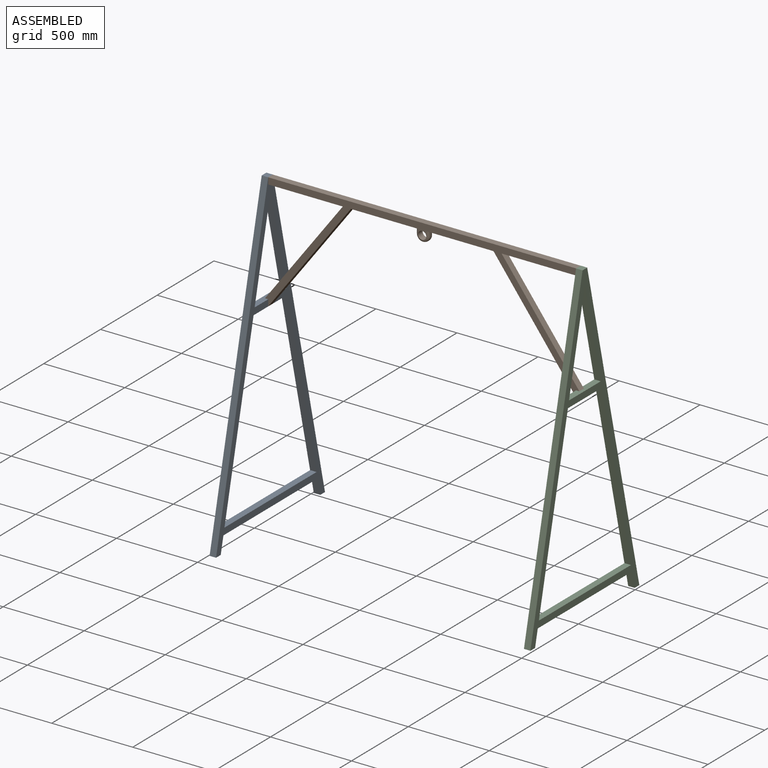
[diagram: assembled view]
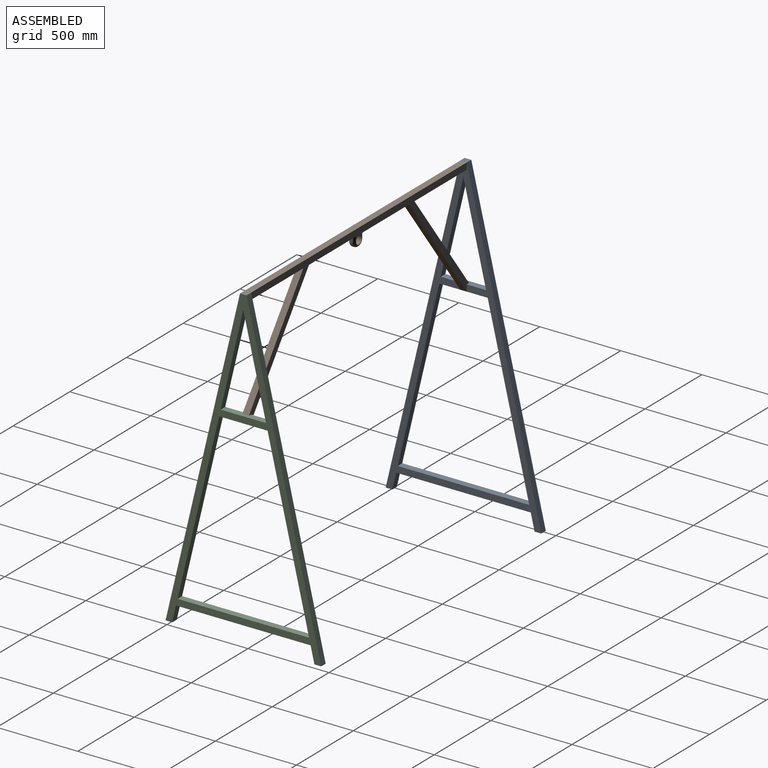
[diagram: assembled view, second angle]
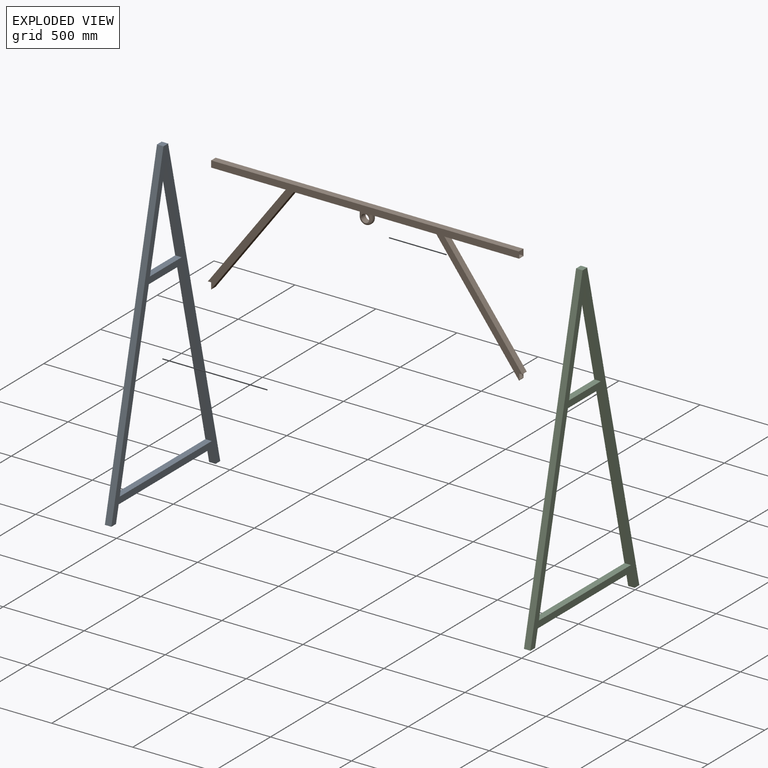
[diagram: exploded view]
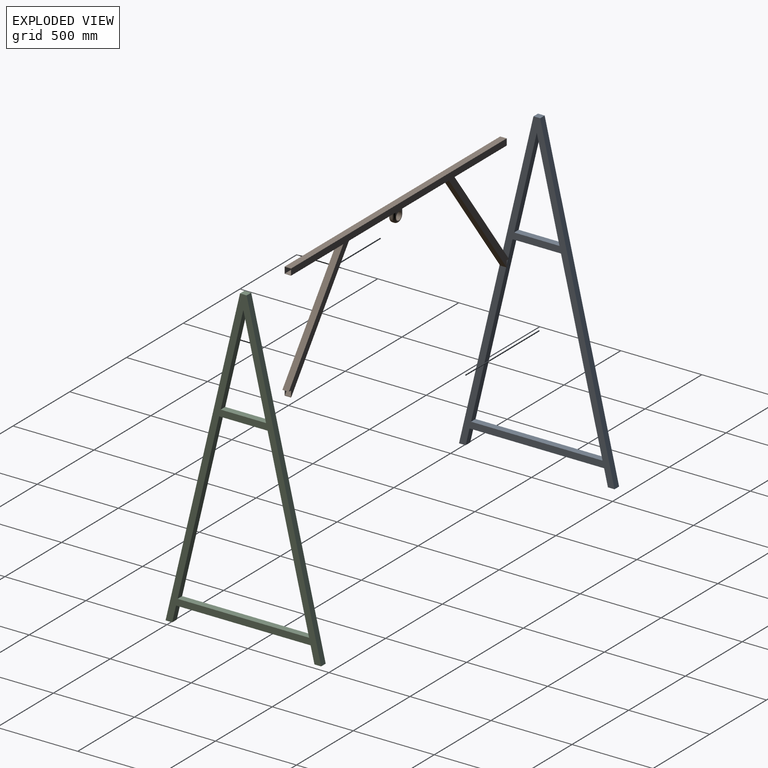
[diagram: exploded view, second angle]
ASSEMBLY  parts=3 mates=2
PART A: 17 faces, bbox 40x960x1946.5 mm
  f0: plane 592.94x139.96mm, normal (0,0.97,-0.23), area 24369.3mm2, adj f1,f14,f15,f16
  f1: plane 592.94x139.96mm, normal (0,-0.97,-0.23), area 24369.3mm2, adj f0,f14,f15,f16
  f2: plane 830.59x40mm, normal (0,0,-1), area 33223.8mm2, adj f3,f12,f15,f16
  f3: plane 100x40mm, normal (0,-0.97,-0.23), area 4109.9mm2, adj f2,f4,f15,f16
  f4: plane 41.1x40mm, normal (0,0,-1), area 1644mm2, adj f3,f5,f15,f16
  f5: plane 1946.51x459.45mm, normal (0,0.97,0.23), area 80000mm2, adj f4,f6,f15,f16
  f6: plane 41.1x40mm, normal (0,0,1), area 1644mm2, adj f5,f7,f15,f16
  f7: plane 1946.51x459.45mm, normal (0,-0.97,0.23), area 80000mm2, adj f6,f8,f15,f16
  f8: plane 41.1x40mm, normal (0,0,-1), area 1644mm2, adj f7,f12,f15,f16
  f9: plane 1086.51x256.46mm, normal (0,-0.97,-0.23), area 44654.7mm2, adj f10,f13,f15,f16
  f10: plane 811.71x40mm, normal (0,0,1), area 32468.4mm2, adj f9,f11,f15,f16
  f11: plane 1086.51x256.46mm, normal (0,0.97,-0.23), area 44654.7mm2, adj f10,f13,f15,f16
  f12: plane 100x40mm, normal (0,0.97,-0.23), area 4109.9mm2, adj f2,f8,f15,f16
  f13: plane 298.8x40mm, normal (0,0,-1), area 11951.8mm2, adj f9,f11,f15,f16
  f14: plane 279.91x40mm, normal (0,0,1), area 11196.5mm2, adj f0,f1,f15,f16
  f15: plane 1946.51x960mm, normal (1,0,0), area 202631.2mm2, adj f0,f1,f2,f3,f4,f5,f6,f7
  f16: plane 1946.51x960mm, normal (-1,0,0), area 202631.2mm2, adj f0,f1,f2,f3,f4,f5,f6,f7
PART B: 44 faces, bbox 1940x40x720 mm
  f0: plane 40x20mm, normal (0,0,-1), area 137.2mm2, adj f1,f17,f19,f20,f38,f39,f40,f41
  f1: plane 640x480mm, normal (0.8,0,0.6), area 32000mm2, adj f0,f2,f19,f20
  f2: plane 460x40mm, normal (0,0,-1), area 18400mm2, adj f1,f3,f19,f20
  f3: plane 40x40mm, normal (1,0,0), area 246.6mm2, adj f2,f4,f19,f20,f27,f28,f29,f30
  f4: plane 1900x40mm, normal (0,0,1), area 76000mm2, adj f3,f5,f19,f20
  f5: plane 40x40mm, normal (-1,0,0), area 246.6mm2, adj f4,f6,f19,f20,f27,f28,f29,f30
  f6: plane 460x40mm, normal (0,0,-1), area 18400mm2, adj f5,f7,f19,f20
  f7: plane 640x480mm, normal (-0.8,0,0.6), area 32000mm2, adj f6,f8,f19,f20
  f8: plane 40x20mm, normal (0,0,-1), area 800mm2, adj f7,f9,f19,f20
  f9: plane 40x40mm, normal (-1,0,0), area 1600mm2, adj f8,f10,f19,f20
  f10: plane 680x510mm, normal (0.8,0,-0.6), area 34000mm2, adj f9,f11,f19,f20
  f11: plane 415x40mm, normal (0,0,-1), area 16096.6mm2, adj f10,f12,f19,f20,f23,f26
  f12: plane 30x10mm, normal (-1,0,0), area 300mm2, adj f11,f13,f23,f26
  f13: cylinder r=40mm len=80mm, axis (0,1,0), area 1256.6mm2, adj f12,f14,f22,f25
  f14: plane 30x10mm, normal (1,0,0), area 300mm2, adj f13,f15,f21,f24
  f15: plane 415x40mm, normal (0,0,-1), area 16096.6mm2, adj f14,f16,f19,f20,f21,f24
  f16: plane 680x510mm, normal (-0.8,0,-0.6), area 34000mm2, adj f15,f17,f19,f20
  f17: plane 40x40mm, normal (1,0,0), area 228.1mm2, adj f0,f16,f19,f20,f35,f36,f37,f38
  f18: cylinder r=25mm len=50mm, axis (0,1,0), area 6283.2mm2, adj f19,f20,f22,f25
  f19: plane 1940x720mm, normal (0,-1,0), area 141718.3mm2, adj f0,f1,f2,f3,f4,f5,f6,f7
  f20: plane 1940x720mm, normal (0,1,0), area 141718.3mm2, adj f0,f1,f2,f3,f4,f5,f6,f7
  f21: cylinder r=15mm len=30mm, axis (0,0,1), area 706.9mm2, adj f14,f15,f20,f22
  f22: torus R=25mm, axis (0,-1,0), area 2557.4mm2, adj f13,f18,f21,f23
  f23: cylinder r=15mm len=30mm, axis (0,0,-1), area 706.9mm2, adj f11,f12,f20,f22
  f24: cylinder r=15mm len=30mm, axis (0,0,-1), area 706.9mm2, adj f14,f15,f19,f25
  f25: torus R=25mm, axis (0,-1,0), area 2557.4mm2, adj f13,f18,f24,f26
  f26: cylinder r=15mm len=30mm, axis (0,0,1), area 706.9mm2, adj f11,f12,f19,f25
  f27: cylinder r=1mm len=1900mm, axis (1,0,0), area 2984.5mm2, adj f3,f5,f28,f32
  f28: plane 1900x34.8mm, normal (0,0,-1), area 66120mm2, adj f3,f5,f27,f29
  f29: cylinder r=1mm len=1900mm, axis (1,0,0), area 2984.5mm2, adj f3,f5,f28,f30
  f30: plane 1900x34.8mm, normal (0,1,0), area 66120mm2, adj f3,f5,f29,f31
  f31: cylinder r=1mm len=1900mm, axis (1,0,0), area 2984.5mm2, adj f3,f5,f30,f33
  f32: plane 1900x34.8mm, normal (0,-1,0), area 66120mm2, adj f3,f5,f27,f34
  f33: plane 1900x34.8mm, normal (0,0,1), area 66120mm2, adj f3,f5,f31,f34
  f34: cylinder r=1mm len=1900mm, axis (1,0,0), area 2984.5mm2, adj f3,f5,f32,f33
  f35: cylinder r=1mm len=654.87mm, axis (0.6,0,-0.8), area 1283.9mm2, adj f17,f36,f38,f43
  f36: plane 654.27x490.7mm, normal (0.8,0,0.6), area 28460.8mm2, adj f17,f35,f37,f43
  f37: cylinder r=1mm len=654.87mm, axis (0.6,0,-0.8), area 1283.9mm2, adj f17,f36,f39,f43
  f38: plane 674.08x506.68mm, normal (0,-1,0), area 27794.7mm2, adj f0,f17,f35,f42,f43
  f39: plane 674.08x506.68mm, normal (0,1,0), area 27794.7mm2, adj f0,f17,f37,f40,f43
  f40: cylinder r=1mm len=639.65mm, axis (0.6,0,-0.8), area 1254.3mm2, adj f0,f39,f41,f43
  f41: plane 639.05x479.29mm, normal (-0.8,0,-0.6), area 27798.8mm2, adj f0,f40,f42,f43
  f42: cylinder r=1mm len=639.65mm, axis (0.6,0,-0.8), area 1254.3mm2, adj f0,f38,f41,f43
  f43: plane 36.8x29.44mm, normal (0.6,0,-0.8), area 1353.4mm2, adj f35,f36,f37,f38,f39,f40,f41,f42
PART C: same geometry as A
PLACE A t=(-1940,0,247.14)mm
PLACE B t=(0,20,2153.65)mm
PLACE C t=(0,0,247.14)mm
MATE fastened B.f3 <-> C.f16  axis (1,0,0) through (0,0,2193.65)mm
MATE fastened A.f15 <-> B.f5  axis (1,0,0) through (-1900,0,2193.65)mm
